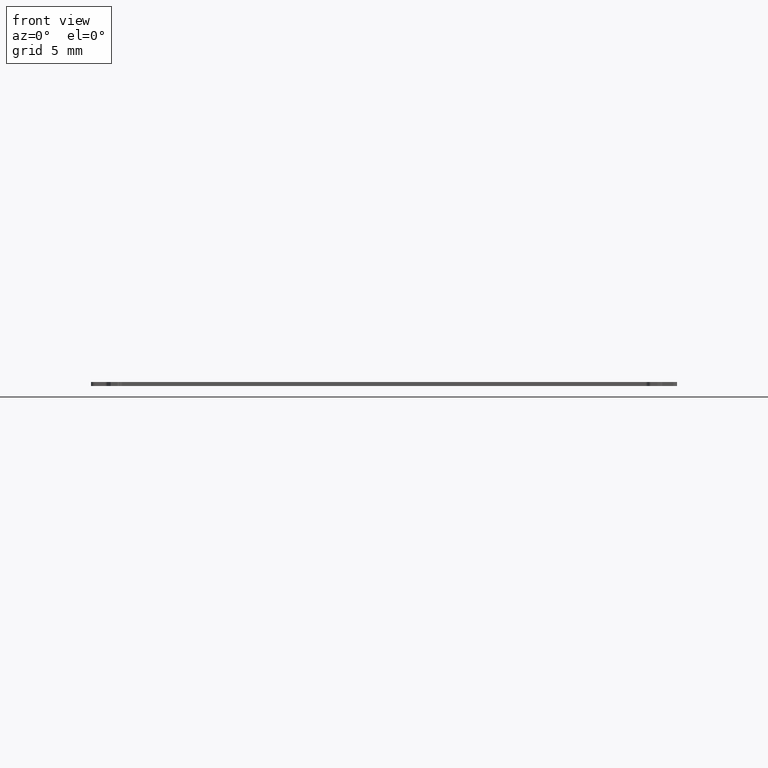
[diagram: clean part render]
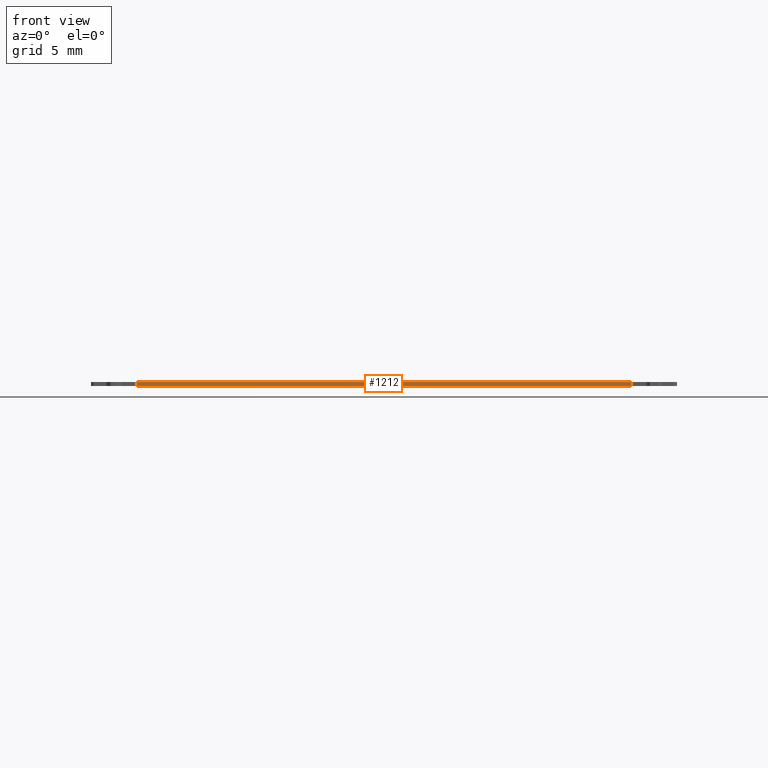
[diagram: same view with one face highlighted and labeled with its STEP entity id]
A machine part, front view. The second image highlights one B-rep face of the part: STEP entity #1212.
In plain terms, the highlighted planar face has unit normal (0, 1, 0).
Its self-contained STEP definition (entity closure, byte-faithful):
#83 = PLANE('',#84);
#84 = AXIS2_PLACEMENT_3D('',#85,#86,#87);
#85 = CARTESIAN_POINT('',(1.10000034,3.921760000011E-003,0.30000194));
#86 = DIRECTION('',(0.E+000,0.E+000,1.));
#87 = DIRECTION('',(1.,0.E+000,-0.E+000));
#137 = PLANE('',#138);
#138 = AXIS2_PLACEMENT_3D('',#139,#140,#141);
#139 = CARTESIAN_POINT('',(1.10000034,3.921760000011E-003,0.E+000));
#140 = DIRECTION('',(0.E+000,0.E+000,1.));
#141 = DIRECTION('',(1.,0.E+000,-0.E+000));
#1104 = PLANE('',#1105);
#1105 = AXIS2_PLACEMENT_3D('',#1106,#1107,#1108);
#1106 = CARTESIAN_POINT('',(2.40000282,0.E+000,0.E+000));
#1107 = DIRECTION('',(-1.154547763491E-005,0.999999999933,0.E+000));
#1108 = DIRECTION('',(0.999999999933,1.154547763491E-005,0.E+000));
#1142 = VERTEX_POINT('',#1143);
#1143 = CARTESIAN_POINT('',(3.50000062,1.26999999992E-005,0.30000194));
#1164 = EDGE_CURVE('',#1165,#1142,#1167,.T.);
#1165 = VERTEX_POINT('',#1166);
#1166 = CARTESIAN_POINT('',(3.50000062,1.26999999992E-005,0.E+000));
#1167 = SURFACE_CURVE('',#1168,(#1172,#1179),.PCURVE_S1.);
#1168 = LINE('',#1169,#1170);
#1169 = CARTESIAN_POINT('',(3.50000062,1.26999999992E-005,0.E+000));
#1170 = VECTOR('',#1171,1.);
#1171 = DIRECTION('',(0.E+000,0.E+000,1.));
#1172 = PCURVE('',#1104,#1173);
#1173 = DEFINITIONAL_REPRESENTATION('',(#1174),#1178);
#1174 = LINE('',#1175,#1176);
#1175 = CARTESIAN_POINT('',(1.099997800073,0.E+000));
#1176 = VECTOR('',#1177,1.);
#1177 = DIRECTION('',(0.E+000,-1.));
#1178 = ( GEOMETRIC_REPRESENTATION_CONTEXT(2) 
PARAMETRIC_REPRESENTATION_CONTEXT() REPRESENTATION_CONTEXT('2D SPACE',''
  ) );
#1179 = PCURVE('',#1180,#1185);
#1180 = PLANE('',#1181);
#1181 = AXIS2_PLACEMENT_3D('',#1182,#1183,#1184);
#1182 = CARTESIAN_POINT('',(3.50000062,1.26999999992E-005,0.E+000));
#1183 = DIRECTION('',(3.34210546875E-007,1.,-0.E+000));
#1184 = DIRECTION('',(1.,-3.34210546875E-007,0.E+000));
#1185 = DEFINITIONAL_REPRESENTATION('',(#1186),#1190);
#1186 = LINE('',#1187,#1188);
#1187 = CARTESIAN_POINT('',(0.E+000,0.E+000));
#1188 = VECTOR('',#1189,1.);
#1189 = DIRECTION('',(0.E+000,-1.));
#1190 = ( GEOMETRIC_REPRESENTATION_CONTEXT(2) 
PARAMETRIC_REPRESENTATION_CONTEXT() REPRESENTATION_CONTEXT('2D SPACE',''
  ) );
#1212 = ADVANCED_FACE('',(#1213),#1180,.F.);
#1213 = FACE_BOUND('',#1214,.F.);
#1214 = EDGE_LOOP('',(#1215,#1216,#1239,#1267));
#1215 = ORIENTED_EDGE('',*,*,#1164,.T.);
#1216 = ORIENTED_EDGE('',*,*,#1217,.T.);
#1217 = EDGE_CURVE('',#1142,#1218,#1220,.T.);
#1218 = VERTEX_POINT('',#1219);
#1219 = CARTESIAN_POINT('',(41.49999828,0.E+000,0.30000194));
#1220 = SURFACE_CURVE('',#1221,(#1225,#1232),.PCURVE_S1.);
#1221 = LINE('',#1222,#1223);
#1222 = CARTESIAN_POINT('',(3.50000062,1.26999999992E-005,0.30000194));
#1223 = VECTOR('',#1224,1.);
#1224 = DIRECTION('',(1.,-3.34210546875E-007,0.E+000));
#1225 = PCURVE('',#1180,#1226);
#1226 = DEFINITIONAL_REPRESENTATION('',(#1227),#1231);
#1227 = LINE('',#1228,#1229);
#1228 = CARTESIAN_POINT('',(0.E+000,-0.30000194));
#1229 = VECTOR('',#1230,1.);
#1230 = DIRECTION('',(1.,0.E+000));
#1231 = ( GEOMETRIC_REPRESENTATION_CONTEXT(2) 
PARAMETRIC_REPRESENTATION_CONTEXT() REPRESENTATION_CONTEXT('2D SPACE',''
  ) );
#1232 = PCURVE('',#83,#1233);
#1233 = DEFINITIONAL_REPRESENTATION('',(#1234),#1238);
#1234 = LINE('',#1235,#1236);
#1235 = CARTESIAN_POINT('',(2.40000028,-3.909060000012E-003));
#1236 = VECTOR('',#1237,1.);
#1237 = DIRECTION('',(1.,-3.34210546875E-007));
#1238 = ( GEOMETRIC_REPRESENTATION_CONTEXT(2) 
PARAMETRIC_REPRESENTATION_CONTEXT() REPRESENTATION_CONTEXT('2D SPACE',''
  ) );
#1239 = ORIENTED_EDGE('',*,*,#1240,.F.);
#1240 = EDGE_CURVE('',#1241,#1218,#1243,.T.);
#1241 = VERTEX_POINT('',#1242);
#1242 = CARTESIAN_POINT('',(41.49999828,0.E+000,0.E+000));
#1243 = SURFACE_CURVE('',#1244,(#1248,#1255),.PCURVE_S1.);
#1244 = LINE('',#1245,#1246);
#1245 = CARTESIAN_POINT('',(41.49999828,0.E+000,0.E+000));
#1246 = VECTOR('',#1247,1.);
#1247 = DIRECTION('',(0.E+000,0.E+000,1.));
#1248 = PCURVE('',#1180,#1249);
#1249 = DEFINITIONAL_REPRESENTATION('',(#1250),#1254);
#1250 = LINE('',#1251,#1252);
#1251 = CARTESIAN_POINT('',(37.999997660002,0.E+000));
#1252 = VECTOR('',#1253,1.);
#1253 = DIRECTION('',(0.E+000,-1.));
#1254 = ( GEOMETRIC_REPRESENTATION_CONTEXT(2) 
PARAMETRIC_REPRESENTATION_CONTEXT() REPRESENTATION_CONTEXT('2D SPACE',''
  ) );
#1255 = PCURVE('',#1256,#1261);
#1256 = PLANE('',#1257);
#1257 = AXIS2_PLACEMENT_3D('',#1258,#1259,#1260);
#1258 = CARTESIAN_POINT('',(41.49999828,0.E+000,0.E+000));
#1259 = DIRECTION('',(-3.562911783974E-003,0.99999365281,0.E+000));
#1260 = DIRECTION('',(0.99999365281,3.562911783974E-003,0.E+000));
#1261 = DEFINITIONAL_REPRESENTATION('',(#1262),#1266);
#1262 = LINE('',#1263,#1264);
#1263 = CARTESIAN_POINT('',(0.E+000,0.E+000));
#1264 = VECTOR('',#1265,1.);
#1265 = DIRECTION('',(0.E+000,-1.));
#1266 = ( GEOMETRIC_REPRESENTATION_CONTEXT(2) 
PARAMETRIC_REPRESENTATION_CONTEXT() REPRESENTATION_CONTEXT('2D SPACE',''
  ) );
#1267 = ORIENTED_EDGE('',*,*,#1268,.F.);
#1268 = EDGE_CURVE('',#1165,#1241,#1269,.T.);
#1269 = SURFACE_CURVE('',#1270,(#1274,#1281),.PCURVE_S1.);
#1270 = LINE('',#1271,#1272);
#1271 = CARTESIAN_POINT('',(3.50000062,1.26999999992E-005,0.E+000));
#1272 = VECTOR('',#1273,1.);
#1273 = DIRECTION('',(1.,-3.34210546875E-007,0.E+000));
#1274 = PCURVE('',#1180,#1275);
#1275 = DEFINITIONAL_REPRESENTATION('',(#1276),#1280);
#1276 = LINE('',#1277,#1278);
#1277 = CARTESIAN_POINT('',(0.E+000,0.E+000));
#1278 = VECTOR('',#1279,1.);
#1279 = DIRECTION('',(1.,0.E+000));
#1280 = ( GEOMETRIC_REPRESENTATION_CONTEXT(2) 
PARAMETRIC_REPRESENTATION_CONTEXT() REPRESENTATION_CONTEXT('2D SPACE',''
  ) );
#1281 = PCURVE('',#137,#1282);
#1282 = DEFINITIONAL_REPRESENTATION('',(#1283),#1287);
#1283 = LINE('',#1284,#1285);
#1284 = CARTESIAN_POINT('',(2.40000028,-3.909060000012E-003));
#1285 = VECTOR('',#1286,1.);
#1286 = DIRECTION('',(1.,-3.34210546875E-007));
#1287 = ( GEOMETRIC_REPRESENTATION_CONTEXT(2) 
PARAMETRIC_REPRESENTATION_CONTEXT() REPRESENTATION_CONTEXT('2D SPACE',''
  ) );